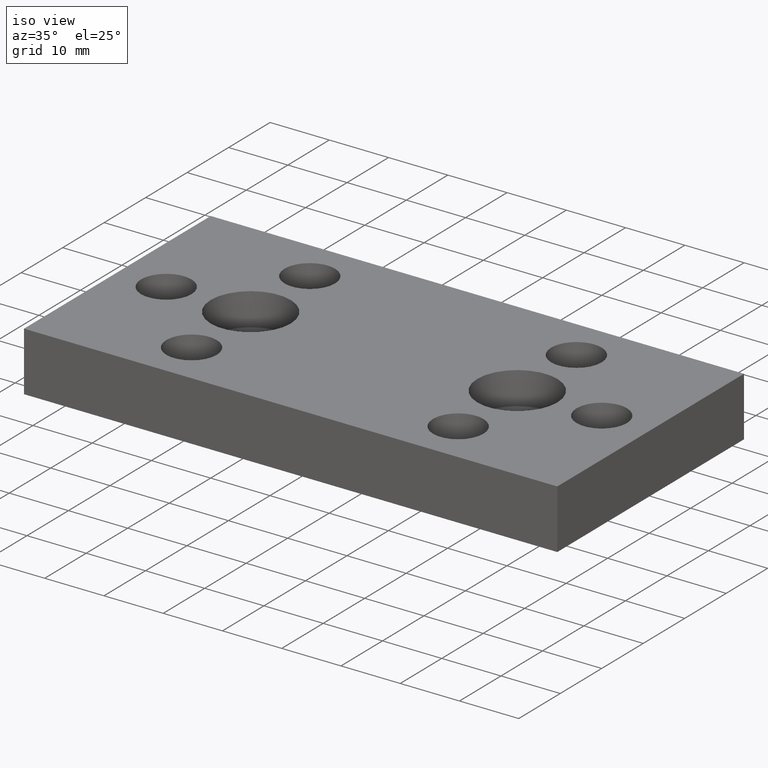
[diagram: clean part render]
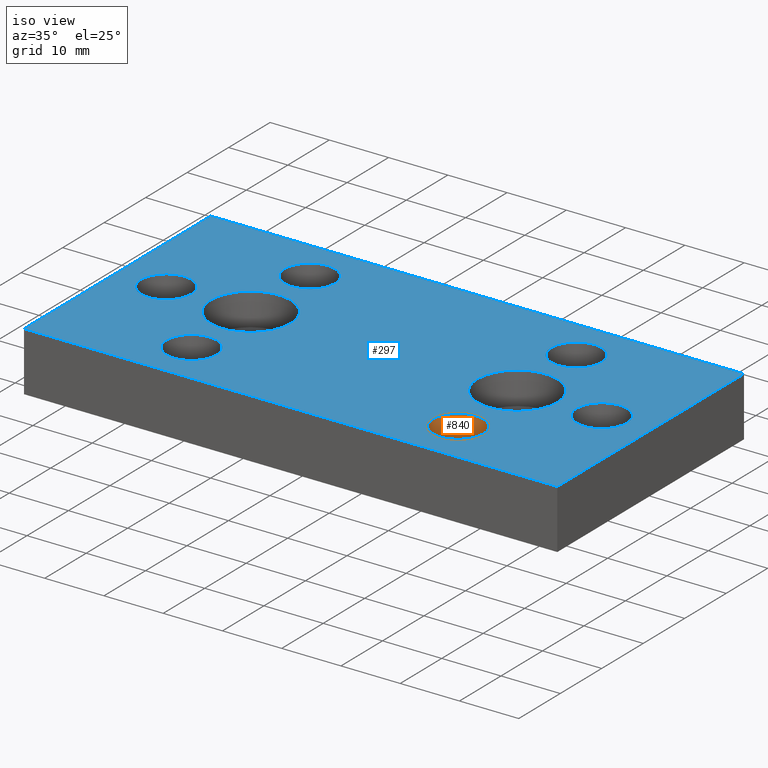
[diagram: same view with the hole feature highlighted: cylindrical wall and planar end face, labeled with their STEP entity ids]
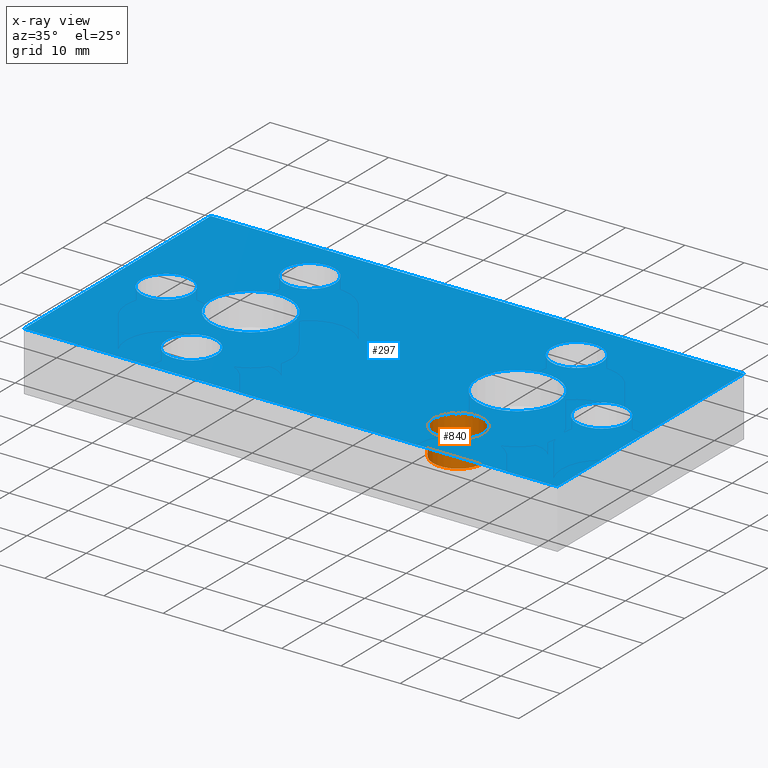
[diagram: x-ray of the same camera — body ghosted, the hole faces saturated]
A machine part, iso view. The highlighted faces form one hole feature of diameter 8.5 mm: the cylindrical wall (entity #840, orange) and its adjacent planar end face (entity #297, blue) — they share a circular edge in the B-rep.
The next image is the same camera in x-ray (body ghosted, the hole faces saturated) — the bore reads through the body.
Wall:
#217=CARTESIAN_POINT('',(18.249999999926786,-36.749999999853003,10.0));
#218=VERTEX_POINT('',#217);
#219=CARTESIAN_POINT('',(26.749999999893134,-36.749999999853003,10.0));
#220=VERTEX_POINT('',#219);
#221=CARTESIAN_POINT('',(22.499999999909960,-36.749999999853003,10.0));
#222=DIRECTION('',(0.0,6.123234E-017,1.0));
#223=DIRECTION('',(1.0,0.0,0.0));
#224=AXIS2_PLACEMENT_3D('',#221,#222,#223);
#225=CIRCLE('',#224,4.249999999983174);
#226=EDGE_CURVE('',#218,#220,#225,.T.);
#228=CARTESIAN_POINT('',(22.499999999909960,-36.749999999853003,10.0));
#229=DIRECTION('',(0.0,6.123234E-017,1.0));
#230=DIRECTION('',(1.0,0.0,0.0));
#231=AXIS2_PLACEMENT_3D('',#228,#229,#230);
#232=CIRCLE('',#231,4.249999999983174);
#233=EDGE_CURVE('',#220,#218,#232,.T.);
#806=CARTESIAN_POINT('',(22.499999999909960,-36.749999999853003,11.000016784667976));
#807=DIRECTION('',(0.0,-6.123234E-017,-1.0));
#808=DIRECTION('',(1.0,0.0,0.0));
#809=AXIS2_PLACEMENT_3D('',#806,#807,#808);
#810=CYLINDRICAL_SURFACE('',#809,4.249999999983174);
#811=CARTESIAN_POINT('',(26.749999999893134,-36.749999999853003,5.500000000000002));
#812=VERTEX_POINT('',#811);
#813=CARTESIAN_POINT('',(26.749999999893134,-36.749999999853003,10.0));
#814=DIRECTION('',(0.0,0.0,-1.0));
#815=VECTOR('',#814,4.499999999999998);
#816=LINE('',#813,#815);
#817=EDGE_CURVE('',#220,#812,#816,.T.);
#818=ORIENTED_EDGE('',*,*,#817,.F.);
#819=ORIENTED_EDGE('',*,*,#233,.T.);
#820=ORIENTED_EDGE('',*,*,#226,.T.);
#821=ORIENTED_EDGE('',*,*,#817,.T.);
#822=CARTESIAN_POINT('',(18.249999999926786,-36.749999999853003,5.500000000000002));
#823=VERTEX_POINT('',#822);
#824=CARTESIAN_POINT('',(22.499999999909960,-36.749999999853003,5.500000000000002));
#825=DIRECTION('',(0.0,-6.123234E-017,-1.0));
#826=DIRECTION('',(1.0,0.0,0.0));
#827=AXIS2_PLACEMENT_3D('',#824,#825,#826);
#828=CIRCLE('',#827,4.249999999983174);
#829=EDGE_CURVE('',#812,#823,#828,.T.);
#830=ORIENTED_EDGE('',*,*,#829,.T.);
#831=CARTESIAN_POINT('',(22.499999999909960,-36.749999999853003,5.500000000000002));
#832=DIRECTION('',(0.0,-6.123234E-017,-1.0));
#833=DIRECTION('',(1.0,0.0,0.0));
#834=AXIS2_PLACEMENT_3D('',#831,#832,#833);
#835=CIRCLE('',#834,4.249999999983174);
#836=EDGE_CURVE('',#823,#812,#835,.T.);
#837=ORIENTED_EDGE('',*,*,#836,.T.);
#838=EDGE_LOOP('',(#818,#819,#820,#821,#830,#837));
#839=FACE_OUTER_BOUND('',#838,.T.);
#840=ADVANCED_FACE('',(#839),#810,.F.);
End face:
#7=CARTESIAN_POINT('',(44.999999999819920,0.0,10.0));
#8=VERTEX_POINT('',#7);
#25=CARTESIAN_POINT('',(-44.999999999820375,0.0,10.0));
#26=VERTEX_POINT('',#25);
#33=CARTESIAN_POINT('',(44.999999999819920,0.0,10.0));
#34=DIRECTION('',(-1.0,0.0,0.0));
#35=VECTOR('',#34,89.999999999640295);
#36=LINE('',#33,#35);
#37=EDGE_CURVE('',#8,#26,#36,.T.);
#56=CARTESIAN_POINT('',(-44.999999999820375,-44.999999999820034,10.0));
#57=VERTEX_POINT('',#56);
#64=CARTESIAN_POINT('',(-44.999999999820375,0.0,10.0));
#65=DIRECTION('',(0.0,-1.0,0.0));
#66=VECTOR('',#65,44.999999999820034);
#67=LINE('',#64,#66);
#68=EDGE_CURVE('',#26,#57,#67,.T.);
#87=CARTESIAN_POINT('',(44.999999999819920,-44.999999999820034,10.0));
#88=VERTEX_POINT('',#87);
#95=CARTESIAN_POINT('',(-44.999999999820375,-44.999999999820034,10.0));
#96=DIRECTION('',(1.0,0.0,0.0));
#97=VECTOR('',#96,89.999999999640295);
#98=LINE('',#95,#97);
#99=EDGE_CURVE('',#57,#88,#98,.T.);
#117=CARTESIAN_POINT('',(44.999999999819920,-44.999999999820034,10.0));
#118=DIRECTION('',(0.0,1.0,0.0));
#119=VECTOR('',#118,44.999999999820034);
#120=LINE('',#117,#119);
#121=EDGE_CURVE('',#88,#8,#120,.T.);
#126=CARTESIAN_POINT('',(-54.000004731301033,-49.500004731538638,10.0));
#127=DIRECTION('',(0.0,0.0,1.0));
#128=DIRECTION('',(1.0,0.0,0.0));
#129=AXIS2_PLACEMENT_3D('',#126,#127,#128);
#130=PLANE('',#129);
#131=ORIENTED_EDGE('',*,*,#37,.T.);
#132=ORIENTED_EDGE('',*,*,#68,.T.);
#133=ORIENTED_EDGE('',*,*,#99,.T.);
#134=ORIENTED_EDGE('',*,*,#121,.T.);
#135=EDGE_LOOP('',(#131,#132,#133,#134));
#136=FACE_OUTER_BOUND('',#135,.T.);
#137=CARTESIAN_POINT('',(-29.249999999883585,-22.499999999910074,10.0));
#138=VERTEX_POINT('',#137);
#139=CARTESIAN_POINT('',(-15.749999999937245,-22.499999999910074,9.999999999999998));
#140=VERTEX_POINT('',#139);
#141=CARTESIAN_POINT('',(-22.499999999910415,-22.499999999910074,10.0));
#142=DIRECTION('',(0.0,6.123234E-017,1.0));
#143=DIRECTION('',(1.0,0.0,0.0));
#144=AXIS2_PLACEMENT_3D('',#141,#142,#143);
#145=CIRCLE('',#144,6.749999999973170);
#146=EDGE_CURVE('',#138,#140,#145,.T.);
#147=ORIENTED_EDGE('',*,*,#146,.F.);
#148=CARTESIAN_POINT('',(-22.499999999910415,-22.499999999910074,10.0));
#149=DIRECTION('',(0.0,6.123234E-017,1.0));
#150=DIRECTION('',(1.0,0.0,0.0));
#151=AXIS2_PLACEMENT_3D('',#148,#149,#150);
#152=CIRCLE('',#151,6.749999999973170);
#153=EDGE_CURVE('',#140,#138,#152,.T.);
#154=ORIENTED_EDGE('',*,*,#153,.F.);
#155=EDGE_LOOP('',(#147,#154));
#156=FACE_BOUND('',#155,.T.);
#157=CARTESIAN_POINT('',(15.749999999936790,-22.499999999910074,10.0));
#158=VERTEX_POINT('',#157);
#159=CARTESIAN_POINT('',(29.249999999883130,-22.499999999910074,9.999999999999998));
#160=VERTEX_POINT('',#159);
#161=CARTESIAN_POINT('',(22.499999999909960,-22.499999999910074,10.0));
#162=DIRECTION('',(0.0,6.123234E-017,1.0));
#163=DIRECTION('',(1.0,0.0,0.0));
#164=AXIS2_PLACEMENT_3D('',#161,#162,#163);
#165=CIRCLE('',#164,6.749999999973170);
#166=EDGE_CURVE('',#158,#160,#165,.T.);
#167=ORIENTED_EDGE('',*,*,#166,.F.);
#168=CARTESIAN_POINT('',(22.499999999909960,-22.499999999910074,10.0));
#169=DIRECTION('',(0.0,6.123234E-017,1.0));
#170=DIRECTION('',(1.0,0.0,0.0));
#171=AXIS2_PLACEMENT_3D('',#168,#169,#170);
#172=CIRCLE('',#171,6.749999999973170);
#173=EDGE_CURVE('',#160,#158,#172,.T.);
#174=ORIENTED_EDGE('',*,*,#173,.F.);
#175=EDGE_LOOP('',(#167,#174));
#176=FACE_BOUND('',#175,.T.);
#177=CARTESIAN_POINT('',(-26.749999999893589,-8.249999999967031,10.0));
#178=VERTEX_POINT('',#177);
#179=CARTESIAN_POINT('',(-18.249999999927240,-8.249999999967031,10.0));
#180=VERTEX_POINT('',#179);
#181=CARTESIAN_POINT('',(-22.499999999910415,-8.249999999967031,10.0));
#182=DIRECTION('',(0.0,6.123234E-017,1.0));
#183=DIRECTION('',(1.0,0.0,0.0));
#184=AXIS2_PLACEMENT_3D('',#181,#182,#183);
#185=CIRCLE('',#184,4.249999999983174);
#186=EDGE_CURVE('',#178,#180,#185,.T.);
#187=ORIENTED_EDGE('',*,*,#186,.F.);
#188=CARTESIAN_POINT('',(-22.499999999910415,-8.249999999967031,10.0));
#189=DIRECTION('',(0.0,6.123234E-017,1.0));
#190=DIRECTION('',(1.0,0.0,0.0));
#191=AXIS2_PLACEMENT_3D('',#188,#189,#190);
#192=CIRCLE('',#191,4.249999999983174);
#193=EDGE_CURVE('',#180,#178,#192,.T.);
#194=ORIENTED_EDGE('',*,*,#193,.F.);
#195=EDGE_LOOP('',(#187,#194));
#196=FACE_BOUND('',#195,.T.);
#197=CARTESIAN_POINT('',(-26.749999999893589,-36.749999999853003,10.0));
#198=VERTEX_POINT('',#197);
#199=CARTESIAN_POINT('',(-18.249999999927240,-36.749999999853003,10.0));
#200=VERTEX_POINT('',#199);
#201=CARTESIAN_POINT('',(-22.499999999910415,-36.749999999853003,10.0));
#202=DIRECTION('',(0.0,6.123234E-017,1.0));
#203=DIRECTION('',(1.0,0.0,0.0));
#204=AXIS2_PLACEMENT_3D('',#201,#202,#203);
#205=CIRCLE('',#204,4.249999999983174);
#206=EDGE_CURVE('',#198,#200,#205,.T.);
#207=ORIENTED_EDGE('',*,*,#206,.F.);
#208=CARTESIAN_POINT('',(-22.499999999910415,-36.749999999853003,10.0));
#209=DIRECTION('',(0.0,6.123234E-017,1.0));
#210=DIRECTION('',(1.0,0.0,0.0));
#211=AXIS2_PLACEMENT_3D('',#208,#209,#210);
#212=CIRCLE('',#211,4.249999999983174);
#213=EDGE_CURVE('',#200,#198,#212,.T.);
#214=ORIENTED_EDGE('',*,*,#213,.F.);
#215=EDGE_LOOP('',(#207,#214));
#216=FACE_BOUND('',#215,.T.);
#217=CARTESIAN_POINT('',(18.249999999926786,-36.749999999853003,10.0));
#218=VERTEX_POINT('',#217);
#219=CARTESIAN_POINT('',(26.749999999893134,-36.749999999853003,10.0));
#220=VERTEX_POINT('',#219);
#221=CARTESIAN_POINT('',(22.499999999909960,-36.749999999853003,10.0));
#222=DIRECTION('',(0.0,6.123234E-017,1.0));
#223=DIRECTION('',(1.0,0.0,0.0));
#224=AXIS2_PLACEMENT_3D('',#221,#222,#223);
#225=CIRCLE('',#224,4.249999999983174);
#226=EDGE_CURVE('',#218,#220,#225,.T.);
#227=ORIENTED_EDGE('',*,*,#226,.F.);
#228=CARTESIAN_POINT('',(22.499999999909960,-36.749999999853003,10.0));
#229=DIRECTION('',(0.0,6.123234E-017,1.0));
#230=DIRECTION('',(1.0,0.0,0.0));
#231=AXIS2_PLACEMENT_3D('',#228,#229,#230);
#232=CIRCLE('',#231,4.249999999983174);
#233=EDGE_CURVE('',#220,#218,#232,.T.);
#234=ORIENTED_EDGE('',*,*,#233,.F.);
#235=EDGE_LOOP('',(#227,#234));
#236=FACE_BOUND('',#235,.T.);
#237=CARTESIAN_POINT('',(18.249999999926786,-8.249999999967031,10.0));
#238=VERTEX_POINT('',#237);
#239=CARTESIAN_POINT('',(26.749999999893134,-8.249999999967031,10.0));
#240=VERTEX_POINT('',#239);
#241=CARTESIAN_POINT('',(22.499999999909960,-8.249999999967031,10.0));
#242=DIRECTION('',(0.0,6.123234E-017,1.0));
#243=DIRECTION('',(1.0,0.0,0.0));
#244=AXIS2_PLACEMENT_3D('',#241,#242,#243);
#245=CIRCLE('',#244,4.249999999983174);
#246=EDGE_CURVE('',#238,#240,#245,.T.);
#247=ORIENTED_EDGE('',*,*,#246,.F.);
#248=CARTESIAN_POINT('',(22.499999999909960,-8.249999999967031,10.0));
#249=DIRECTION('',(0.0,6.123234E-017,1.0));
#250=DIRECTION('',(1.0,0.0,0.0));
#251=AXIS2_PLACEMENT_3D('',#248,#249,#250);
#252=CIRCLE('',#251,4.249999999983174);
#253=EDGE_CURVE('',#240,#238,#252,.T.);
#254=ORIENTED_EDGE('',*,*,#253,.F.);
#255=EDGE_LOOP('',(#247,#254));
#256=FACE_BOUND('',#255,.T.);
#257=CARTESIAN_POINT('',(32.499999999869488,-22.499999999910074,10.0));
#258=VERTEX_POINT('',#257);
#259=CARTESIAN_POINT('',(40.999999999835836,-22.499999999910074,10.0));
#260=VERTEX_POINT('',#259);
#261=CARTESIAN_POINT('',(36.749999999852662,-22.499999999910074,10.0));
#262=DIRECTION('',(0.0,6.123234E-017,1.0));
#263=DIRECTION('',(1.0,0.0,0.0));
#264=AXIS2_PLACEMENT_3D('',#261,#262,#263);
#265=CIRCLE('',#264,4.249999999983174);
#266=EDGE_CURVE('',#258,#260,#265,.T.);
#267=ORIENTED_EDGE('',*,*,#266,.F.);
#268=CARTESIAN_POINT('',(36.749999999852662,-22.499999999910074,10.0));
#269=DIRECTION('',(0.0,6.123234E-017,1.0));
#270=DIRECTION('',(1.0,0.0,0.0));
#271=AXIS2_PLACEMENT_3D('',#268,#269,#270);
#272=CIRCLE('',#271,4.249999999983174);
#273=EDGE_CURVE('',#260,#258,#272,.T.);
#274=ORIENTED_EDGE('',*,*,#273,.F.);
#275=EDGE_LOOP('',(#267,#274));
#276=FACE_BOUND('',#275,.T.);
#277=CARTESIAN_POINT('',(-40.999999999836291,-22.499999999910074,10.0));
#278=VERTEX_POINT('',#277);
#279=CARTESIAN_POINT('',(-32.499999999869942,-22.499999999910074,10.0));
#280=VERTEX_POINT('',#279);
#281=CARTESIAN_POINT('',(-36.749999999853117,-22.499999999910074,10.0));
#282=DIRECTION('',(0.0,6.123234E-017,1.0));
#283=DIRECTION('',(1.0,0.0,0.0));
#284=AXIS2_PLACEMENT_3D('',#281,#282,#283);
#285=CIRCLE('',#284,4.249999999983174);
#286=EDGE_CURVE('',#278,#280,#285,.T.);
#287=ORIENTED_EDGE('',*,*,#286,.F.);
#288=CARTESIAN_POINT('',(-36.749999999853117,-22.499999999910074,10.0));
#289=DIRECTION('',(0.0,6.123234E-017,1.0));
#290=DIRECTION('',(1.0,0.0,0.0));
#291=AXIS2_PLACEMENT_3D('',#288,#289,#290);
#292=CIRCLE('',#291,4.249999999983174);
#293=EDGE_CURVE('',#280,#278,#292,.T.);
#294=ORIENTED_EDGE('',*,*,#293,.F.);
#295=EDGE_LOOP('',(#287,#294));
#296=FACE_BOUND('',#295,.T.);
#297=ADVANCED_FACE('',(#136,#156,#176,#196,#216,#236,#256,#276,#296),#130,.T.);